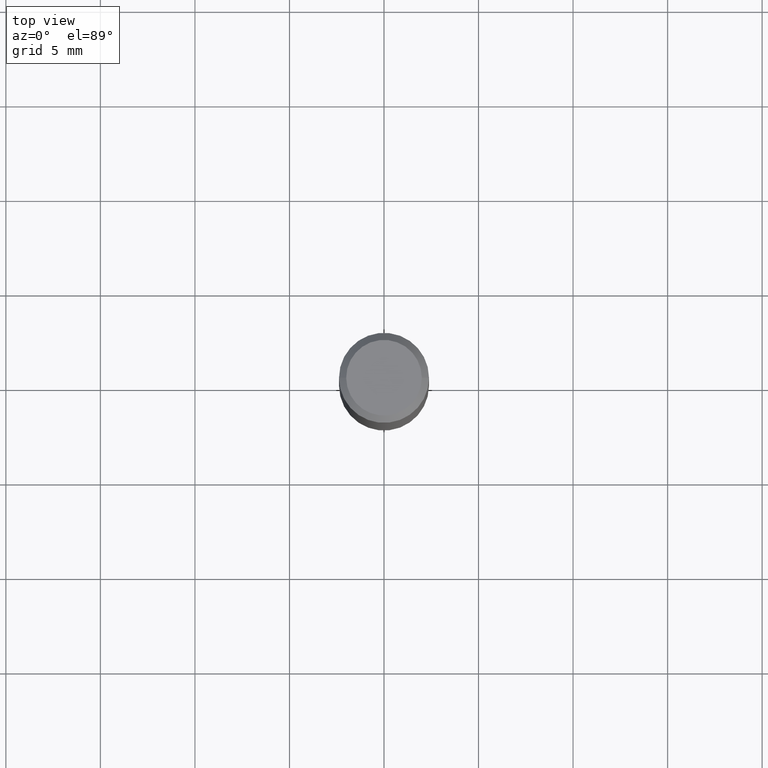
[diagram: clean part render]
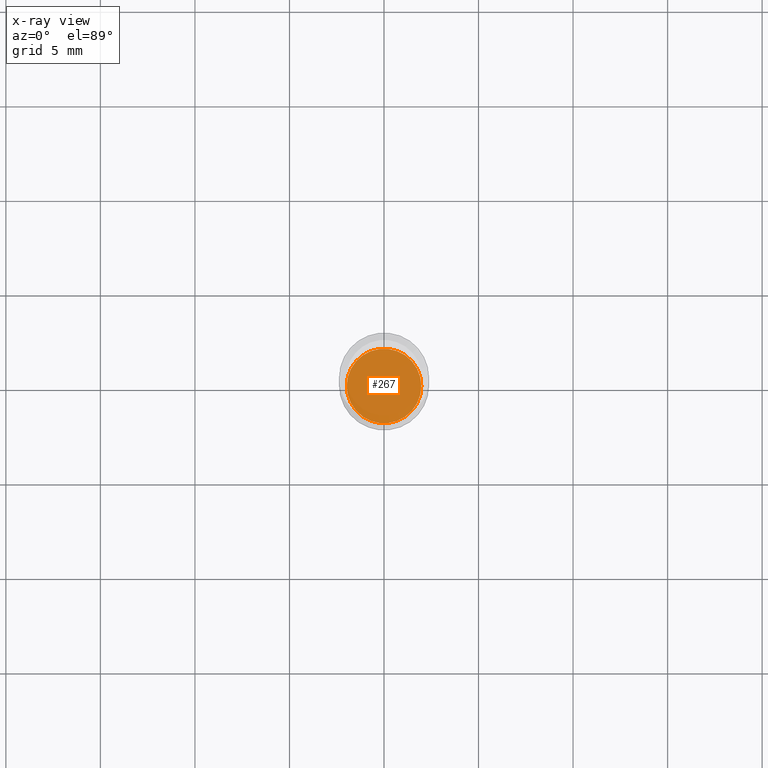
[diagram: x-ray — body ghosted, one internal face saturated and labeled with its STEP entity id]
A machine part, top view, then the same camera in x-ray: the body is ghosted and one INTERNAL B-rep face — a face not visible from any outside direction — is saturated and labeled: STEP entity #267.
In plain terms, the highlighted planar face has unit normal (-0, 0, 1).
Its self-contained STEP definition (entity closure, byte-faithful):
#8 = DIRECTION ( 'NONE',  ( 1.000000000000000000, -6.982962677686266711E-15, 0.000000000000000000 ) ) ;
#11 = DIRECTION ( 'NONE',  ( -2.445468806185136597E-29, 3.491481338843145583E-15, 1.000000000000000000 ) ) ;
#25 = VERTEX_POINT ( 'NONE', #278 ) ;
#36 = AXIS2_PLACEMENT_3D ( 'NONE', #238, #343, #8 ) ;
#46 = DIRECTION ( 'NONE',  ( 1.000000000000000000, -6.982962677686265922E-15, 4.876176775795935793E-29 ) ) ;
#95 = ORIENTED_EDGE ( 'NONE', *, *, #263, .F. ) ;
#125 = EDGE_LOOP ( 'NONE', ( #187, #95 ) ) ;
#138 = CIRCLE ( 'NONE', #36, 0.07760000000000000231 ) ;
#162 = FACE_OUTER_BOUND ( 'NONE', #125, .T. ) ;
#164 = DIRECTION ( 'NONE',  ( 1.000000000000000000, -6.982962677686266711E-15, 0.000000000000000000 ) ) ;
#185 = CARTESIAN_POINT ( 'NONE',  ( 0.07760000000000000231, -4.033359242631600406E-15, -1.000000000000000222 ) ) ;
#187 = ORIENTED_EDGE ( 'NONE', *, *, #271, .F. ) ;
#204 = CARTESIAN_POINT ( 'NONE',  ( 2.445468806185136877E-29, -3.491481338843145977E-15, -1.000000000000000222 ) ) ;
#238 = CARTESIAN_POINT ( 'NONE',  ( 2.445468806185136877E-29, -3.491481338843145977E-15, -1.000000000000000222 ) ) ;
#263 = EDGE_CURVE ( 'NONE', #25, #305, #138, .T. ) ;
#267 = ADVANCED_FACE ( 'NONE', ( #162 ), #306, .F. ) ;
#271 = EDGE_CURVE ( 'NONE', #305, #25, #312, .T. ) ;
#277 = CARTESIAN_POINT ( 'NONE',  ( 2.445468806185136877E-29, -3.491481338843145977E-15, -1.000000000000000222 ) ) ;
#278 = CARTESIAN_POINT ( 'NONE',  ( -0.07760000000000000231, -2.937450948719197015E-15, -1.000000000000000222 ) ) ;
#305 = VERTEX_POINT ( 'NONE', #185 ) ;
#306 = PLANE ( 'NONE',  #376 ) ;
#312 = CIRCLE ( 'NONE', #400, 0.07760000000000000231 ) ;
#343 = DIRECTION ( 'NONE',  ( -2.445468806185136597E-29, 3.491481338843145583E-15, 1.000000000000000000 ) ) ;
#376 = AXIS2_PLACEMENT_3D ( 'NONE', #277, #410, #46 ) ;
#400 = AXIS2_PLACEMENT_3D ( 'NONE', #204, #11, #164 ) ;
#410 = DIRECTION ( 'NONE',  ( -2.438088387897960049E-29, 3.491481338843145188E-15, 1.000000000000000000 ) ) ;